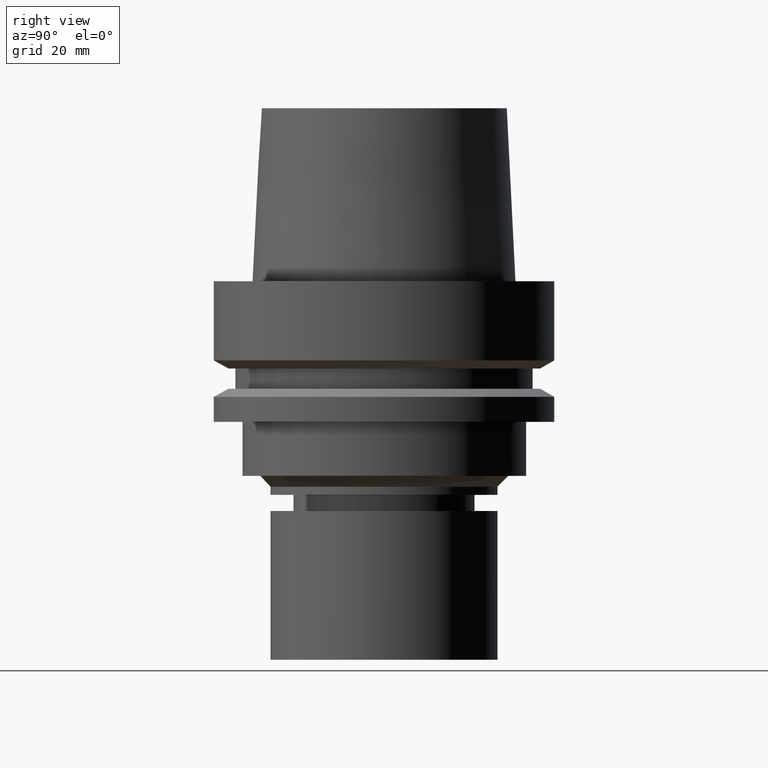
[diagram: clean part render]
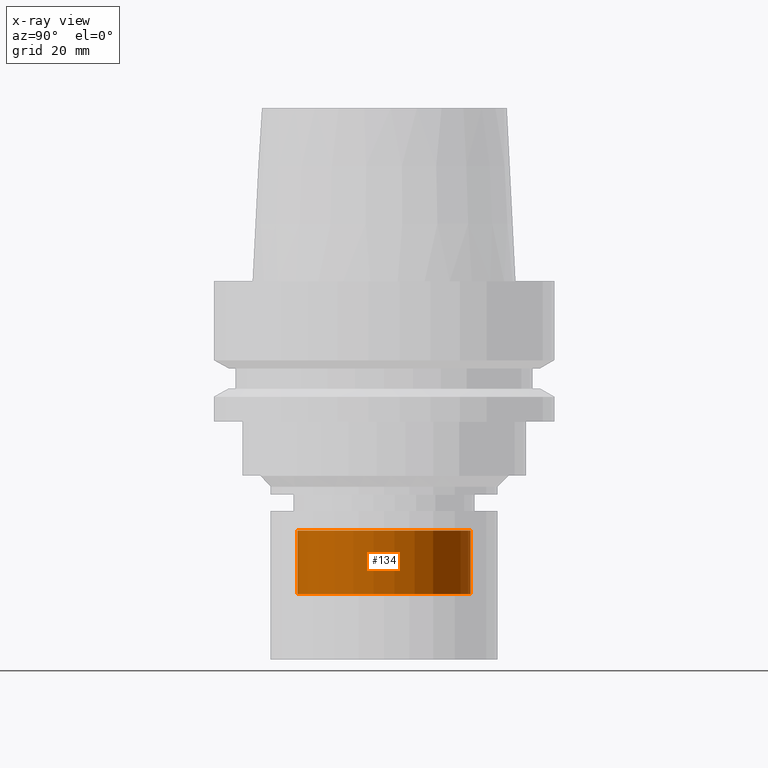
[diagram: x-ray — body ghosted, one internal face saturated and labeled with its STEP entity id]
A machine part, right view, then the same camera in x-ray: the body is ghosted and one INTERNAL B-rep face — a face not visible from any outside direction — is saturated and labeled: STEP entity #134.
In plain terms, the highlighted cylindrical surface (bore or boss wall) has radius 16 mm, axis along (-0, -0, 1).
Its self-contained STEP definition (entity closure, byte-faithful):
#113=EDGE_CURVE('Unnamed[1]',#271,#271,#272,.T.);
#134=ADVANCED_FACE('Unnamed[1]',(#304,#305),#306,.T.);
#163=EDGE_CURVE('Unnamed[1]',#349,#349,#350,.T.);
#271=VERTEX_POINT('',#483);
#272=CIRCLE('',#484,16.0);
#304=FACE_BOUND('',#524,.T.);
#305=FACE_BOUND('',#525,.T.);
#306=CYLINDRICAL_SURFACE('',#526,16.0);
#349=VERTEX_POINT('',#580);
#350=CIRCLE('',#581,16.0);
#483=CARTESIAN_POINT('',(2.8247260772613E-015,16.0,-46.131277674967));
#484=AXIS2_PLACEMENT_3D('',#707,#708,#709);
#524=EDGE_LOOP('',(#744));
#525=EDGE_LOOP('',(#745));
#526=AXIS2_PLACEMENT_3D('',#746,#747,#748);
#580=CARTESIAN_POINT('',(3.54503065319085E-015,16.0,-57.8947441116744));
#581=AXIS2_PLACEMENT_3D('',#792,#793,#794);
#707=CARTESIAN_POINT('',(2.8247260772613E-015,5.64945215452261E-015,-46.131277674967));
#708=DIRECTION('',(-6.12323399573677E-017,-1.22464679914735E-016,1.0));
#709=DIRECTION('',(-1.23259516440783E-032,1.0,1.22464679914735E-016));
#744=ORIENTED_EDGE('',*,*,#113,.F.);
#745=ORIENTED_EDGE('',*,*,#163,.T.);
#746=CARTESIAN_POINT('',(3.18487836522608E-015,6.36975673045216E-015,-52.0130108933207));
#747=DIRECTION('',(-6.12323399573677E-017,-1.22464679914735E-016,1.0));
#748=DIRECTION('',(-1.23259516440783E-032,1.0,1.22464679914735E-016));
#792=CARTESIAN_POINT('',(3.54503065319085E-015,7.09006130638171E-015,-57.8947441116744));
#793=DIRECTION('',(-6.12323399573677E-017,-1.22464679914735E-016,1.0));
#794=DIRECTION('',(-1.23259516440783E-032,1.0,1.22464679914735E-016));